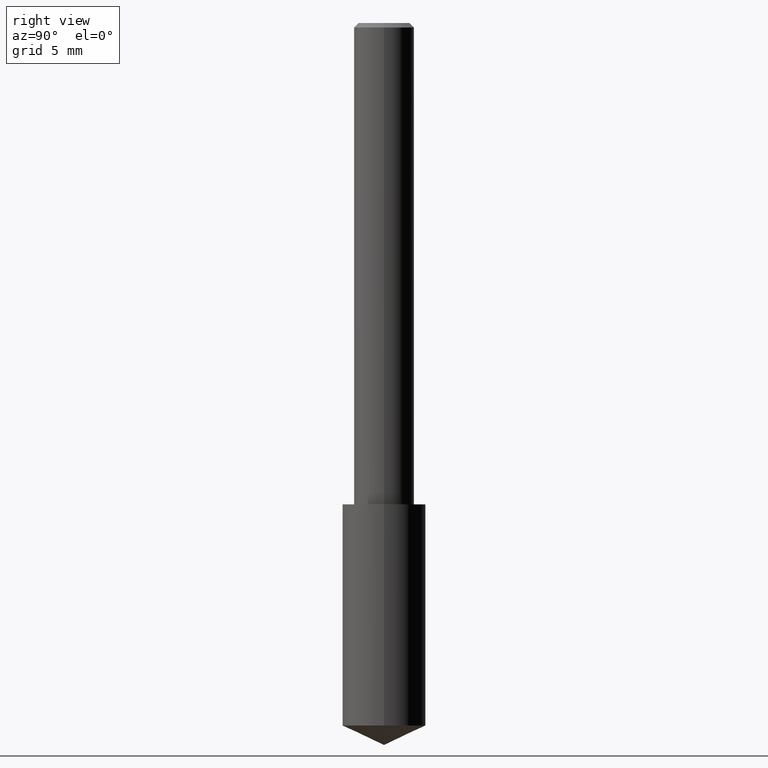
[diagram: clean part render]
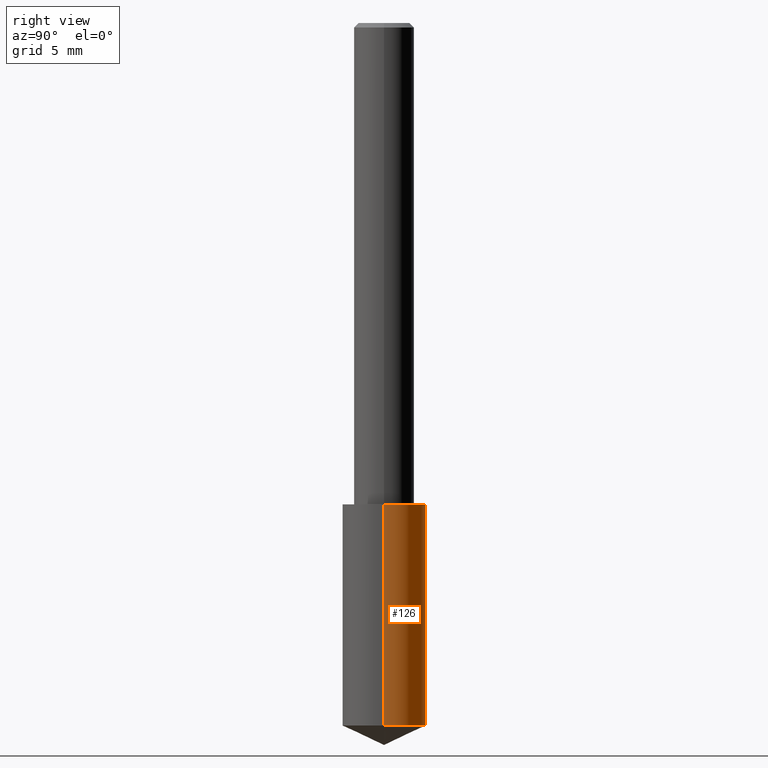
[diagram: same view with one face highlighted and labeled with its STEP entity id]
A machine part, right view. The second image highlights one B-rep face of the part: STEP entity #126.
In plain terms, the highlighted cylindrical surface (partial cylindrical patch) has radius 2.1996 mm, axis along (-0, 0, 1).
Its self-contained STEP definition (entity closure, byte-faithful):
#1 = DIRECTION ( 'NONE',  ( -2.445468806185136597E-29, 3.491481338843145583E-15, 1.000000000000000000 ) ) ;
#10 = ORIENTED_EDGE ( 'NONE', *, *, #130, .T. ) ;
#13 = VERTEX_POINT ( 'NONE', #303 ) ;
#23 = CIRCLE ( 'NONE', #46, 0.08659999999999998255 ) ;
#24 = VECTOR ( 'NONE', #243, 39.37007874015748143 ) ;
#30 = DIRECTION ( 'NONE',  ( 1.000000000000000000, -6.982962677686269866E-15, 0.000000000000000000 ) ) ;
#34 = EDGE_CURVE ( 'NONE', #246, #179, #98, .T. ) ;
#46 = AXIS2_PLACEMENT_3D ( 'NONE', #281, #1, #272 ) ;
#55 = ORIENTED_EDGE ( 'NONE', *, *, #34, .F. ) ;
#56 = CARTESIAN_POINT ( 'NONE',  ( -0.08659999999999998255, -3.678524740115566939E-15, -1.000000000000000222 ) ) ;
#67 = AXIS2_PLACEMENT_3D ( 'NONE', #161, #82, #30 ) ;
#82 = DIRECTION ( 'NONE',  ( -2.445468806185136597E-29, 3.491481338843145583E-15, 1.000000000000000000 ) ) ;
#94 = EDGE_CURVE ( 'NONE', #246, #13, #176, .T. ) ;
#98 = LINE ( 'NONE', #206, #321 ) ;
#106 = FACE_OUTER_BOUND ( 'NONE', #325, .T. ) ;
#126 = ADVANCED_FACE ( 'NONE', ( #106 ), #208, .T. ) ;
#128 = CARTESIAN_POINT ( 'NONE',  ( -0.08659999999999998255, -2.876151329674899932E-15, -1.000000000000000222 ) ) ;
#130 = EDGE_CURVE ( 'NONE', #13, #194, #240, .T. ) ;
#161 = CARTESIAN_POINT ( 'NONE',  ( 3.569449693217560249E-29, -5.096228159724480781E-15, -1.459617756803777144 ) ) ;
#171 = DIRECTION ( 'NONE',  ( -2.445468806185136877E-29, 3.491481338843145188E-15, 1.000000000000000000 ) ) ;
#176 = CIRCLE ( 'NONE', #67, 0.08659999999999998255 ) ;
#179 = VERTEX_POINT ( 'NONE', #285 ) ;
#192 = DIRECTION ( 'NONE',  ( -2.445468806185136597E-29, 3.491481338843145583E-15, 1.000000000000000000 ) ) ;
#194 = VERTEX_POINT ( 'NONE', #56 ) ;
#198 = AXIS2_PLACEMENT_3D ( 'NONE', #259, #192, #216 ) ;
#206 = CARTESIAN_POINT ( 'NONE',  ( 0.08659999999999998255, -4.096205906730777690E-15, -1.000000000000000222 ) ) ;
#208 = CYLINDRICAL_SURFACE ( 'NONE', #198, 0.08659999999999998255 ) ;
#216 = DIRECTION ( 'NONE',  ( 1.000000000000000000, -6.982962677686269866E-15, 0.000000000000000000 ) ) ;
#217 = ORIENTED_EDGE ( 'NONE', *, *, #278, .F. ) ;
#240 = LINE ( 'NONE', #128, #24 ) ;
#243 = DIRECTION ( 'NONE',  ( -2.445468806185136877E-29, 3.491481338843145188E-15, 1.000000000000000000 ) ) ;
#246 = VERTEX_POINT ( 'NONE', #337 ) ;
#259 = CARTESIAN_POINT ( 'NONE',  ( 2.445468806185137438E-29, -3.491481338843146371E-15, -1.000000000000000222 ) ) ;
#272 = DIRECTION ( 'NONE',  ( 1.000000000000000000, -6.982962677686269866E-15, 0.000000000000000000 ) ) ;
#278 = EDGE_CURVE ( 'NONE', #179, #194, #23, .T. ) ;
#281 = CARTESIAN_POINT ( 'NONE',  ( 2.445468806185136877E-29, -3.491481338843145977E-15, -1.000000000000000222 ) ) ;
#285 = CARTESIAN_POINT ( 'NONE',  ( 0.08659999999999998255, -4.096205906730776901E-15, -1.000000000000000222 ) ) ;
#299 = ORIENTED_EDGE ( 'NONE', *, *, #94, .T. ) ;
#303 = CARTESIAN_POINT ( 'NONE',  ( -0.08660000000000001030, -4.480898150556233158E-15, -1.459617756803777144 ) ) ;
#321 = VECTOR ( 'NONE', #171, 39.37007874015748143 ) ;
#325 = EDGE_LOOP ( 'NONE', ( #299, #10, #217, #55 ) ) ;
#337 = CARTESIAN_POINT ( 'NONE',  ( 0.08660000000000001030, -5.700952727612111706E-15, -1.459617756803777144 ) ) ;